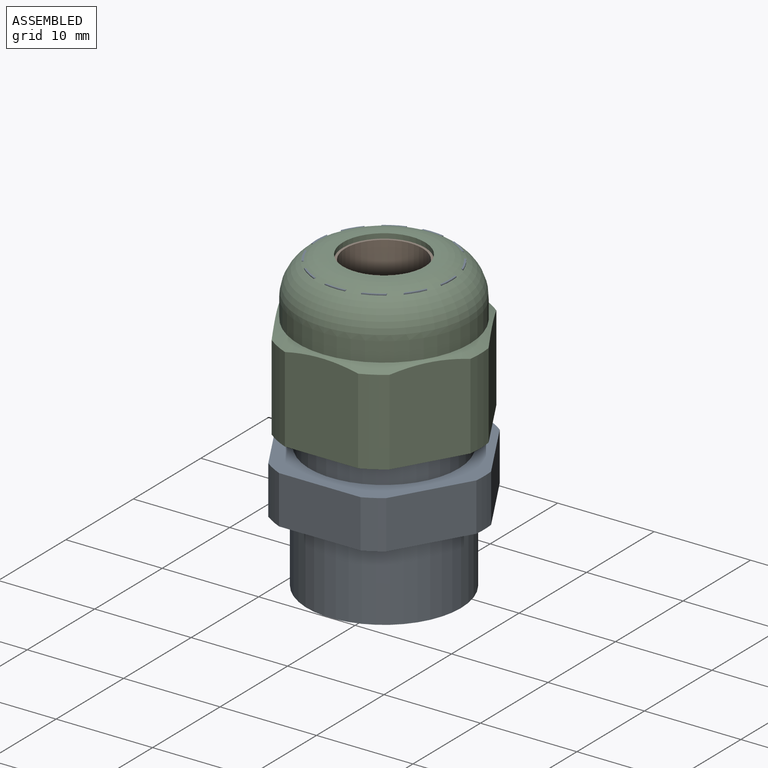
[diagram: assembled view]
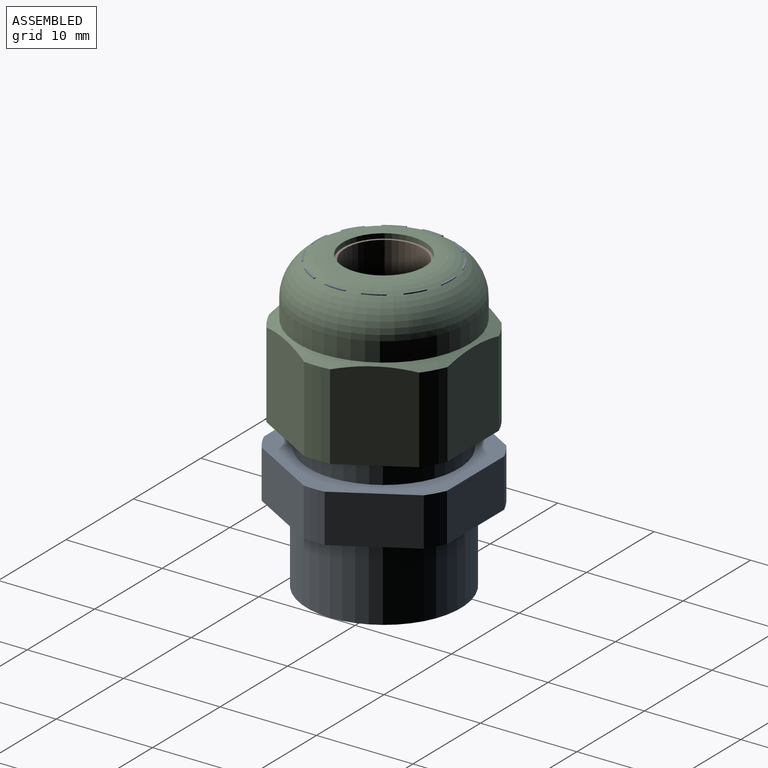
[diagram: assembled view, second angle]
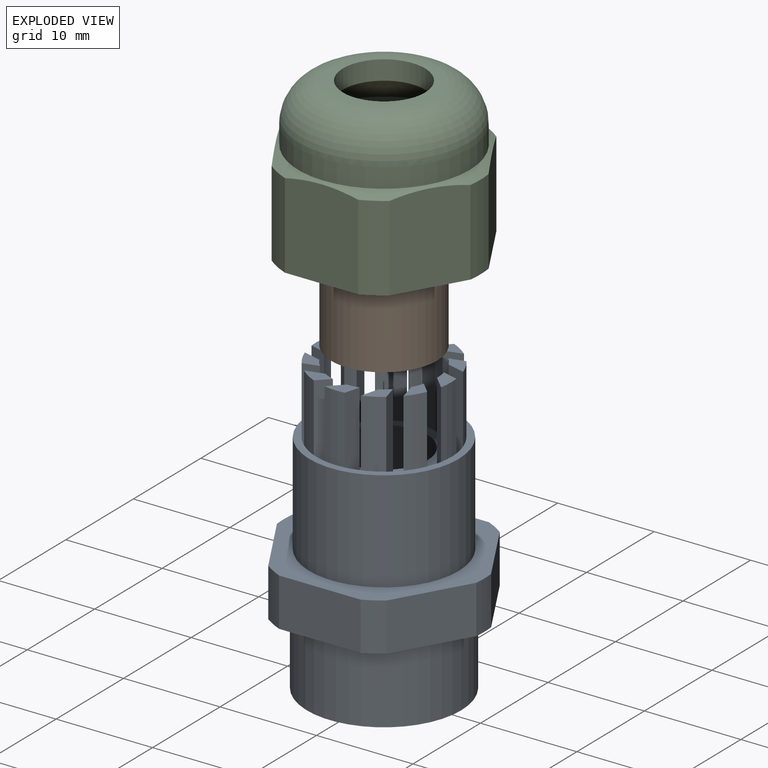
[diagram: exploded view]
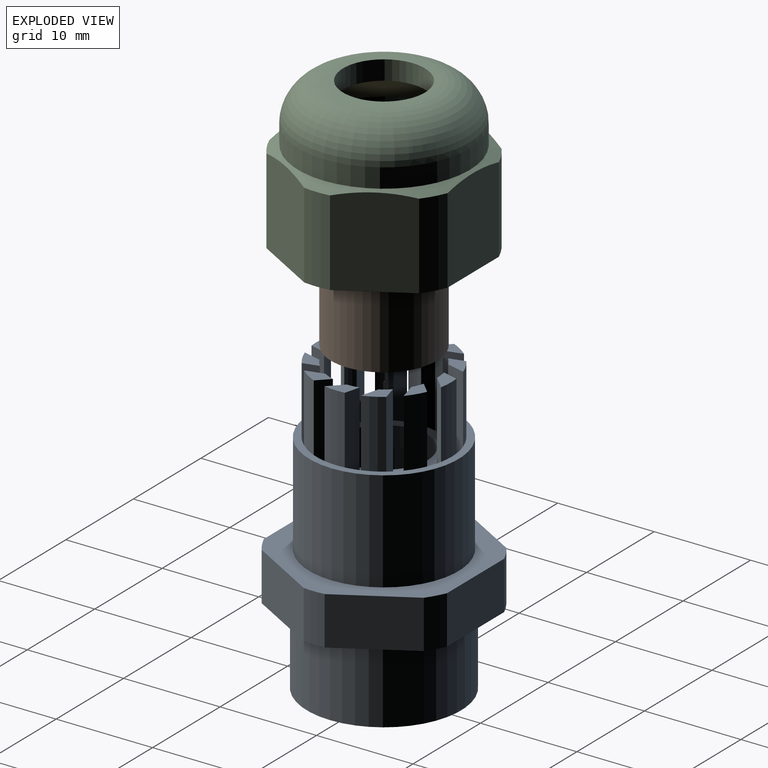
[diagram: exploded view, second angle]
ASSEMBLY  parts=3 mates=2
PART A: 118 faces, bbox 20.8x19x30.5 mm
  f0: cylinder r=7.75mm len=15.5mm, axis (0,0,1), area 511.3mm2, adj f106,f117
  f1: cylinder r=8mm len=16mm, axis (0,0,1), area 402.1mm2, adj f114,f115
  f2: revolved ~20.5x11mm, area 708.4mm2, adj f113,f114
  f3: revolved ~9x9mm, area 56.5mm2, adj f112,f113
  f4: revolved ~2x1.09mm, area 3mm2, adj f5,f6,f8,f117
  f5: plane 9x1.59mm, normal (-0.26,0.97,0), area 14.8mm2, adj f4,f7,f8,f69,f81,f93
  f6: plane 9x1.87mm, normal (0.26,-0.97,0), area 17.4mm2, adj f4,f7,f8,f70,f82,f94
  f7: cylinder r=5.5mm len=1.28mm, axis (0,0,-1), area 1.6mm2, adj f5,f6,f8,f112
  f8: plane 2.87x1.52mm, normal (0,0,1), area 2.3mm2, adj f4,f5,f6,f7
  f9: revolved ~2x1.45mm, area 3mm2, adj f10,f11,f13,f117
  f10: plane 9x1.59mm, normal (0.26,0.97,0), area 14.8mm2, adj f9,f12,f13,f68,f80,f92
  f11: plane 9x1.87mm, normal (-0.26,-0.97,0), area 17.4mm2, adj f9,f12,f13,f69,f81,f93
  f12: cylinder r=5.5mm len=1.52mm, axis (0,0,-1), area 1.6mm2, adj f10,f11,f13,f112
  f13: plane 2.19x1.95mm, normal (0,0,1), area 2.3mm2, adj f9,f10,f11,f12
  f14: revolved ~2x1.41mm, area 3mm2, adj f15,f16,f18,f117
  f15: plane 9x1.17mm, normal (0.71,0.71,0), area 14.8mm2, adj f14,f17,f18,f67,f79,f91
  f16: plane 9x1.37mm, normal (-0.71,-0.71,0), area 17.4mm2, adj f14,f17,f18,f68,f80,f92
  f17: cylinder r=5.5mm len=1.61mm, axis (0,0,-1), area 1.6mm2, adj f15,f16,f18,f112
  f18: plane 2.78x1.61mm, normal (0,0,1), area 2.3mm2, adj f14,f15,f16,f17
  f19: revolved ~2x1.09mm, area 3mm2, adj f20,f21,f23,f117
  f20: plane 9x1.59mm, normal (0.97,0.26,0), area 14.8mm2, adj f19,f22,f23,f66,f78,f90
  f21: plane 9x1.87mm, normal (-0.97,-0.26,0), area 17.4mm2, adj f19,f22,f23,f67,f79,f91
  f22: cylinder r=5.5mm len=1.28mm, axis (0,0,-1), area 1.6mm2, adj f20,f21,f23,f112
  f23: plane 2.87x1.52mm, normal (0,0,1), area 2.3mm2, adj f19,f20,f21,f22
  f24: revolved ~2x1.45mm, area 3mm2, adj f25,f26,f28,f117
  f25: plane 9x1.59mm, normal (0.97,-0.26,0), area 14.8mm2, adj f24,f27,f28,f65,f77,f89
  f26: plane 9x1.87mm, normal (-0.97,0.26,0), area 17.4mm2, adj f24,f27,f28,f66,f78,f90
  f27: cylinder r=5.5mm len=1.52mm, axis (0,0,-1), area 1.6mm2, adj f25,f26,f28,f112
  f28: plane 2.19x1.95mm, normal (0,0,1), area 2.3mm2, adj f24,f25,f26,f27
  f29: revolved ~2x1.41mm, area 3mm2, adj f30,f31,f33,f117
  f30: plane 9x1.17mm, normal (0.71,-0.71,0), area 14.8mm2, adj f29,f32,f33,f64,f76,f88
  f31: plane 9x1.37mm, normal (-0.71,0.71,0), area 17.4mm2, adj f29,f32,f33,f65,f77,f89
  f32: cylinder r=5.5mm len=1.61mm, axis (0,0,-1), area 1.6mm2, adj f30,f31,f33,f112
  f33: plane 2.78x1.61mm, normal (0,0,1), area 2.3mm2, adj f29,f30,f31,f32
  f34: revolved ~2x1.09mm, area 3mm2, adj f35,f36,f38,f117
  f35: plane 9x1.59mm, normal (0.26,-0.97,0), area 14.8mm2, adj f34,f37,f38,f63,f75,f87
  f36: plane 9x1.87mm, normal (-0.26,0.97,0), area 17.4mm2, adj f34,f37,f38,f64,f76,f88
  f37: cylinder r=5.5mm len=1.28mm, axis (0,0,-1), area 1.6mm2, adj f35,f36,f38,f112
  f38: plane 2.87x1.52mm, normal (0,0,1), area 2.3mm2, adj f34,f35,f36,f37
  f39: revolved ~2x1.45mm, area 3mm2, adj f40,f41,f43,f117
  f40: plane 9x1.59mm, normal (-0.26,-0.97,0), area 14.8mm2, adj f39,f42,f43,f62,f74,f86
  f41: plane 9x1.87mm, normal (0.26,0.97,0), area 17.4mm2, adj f39,f42,f43,f63,f75,f87
  f42: cylinder r=5.5mm len=1.52mm, axis (0,0,-1), area 1.6mm2, adj f40,f41,f43,f112
  f43: plane 2.19x1.95mm, normal (0,0,1), area 2.3mm2, adj f39,f40,f41,f42
  f44: revolved ~2x1.41mm, area 3mm2, adj f45,f46,f48,f117
  f45: plane 9x1.17mm, normal (-0.71,-0.71,0), area 14.8mm2, adj f44,f47,f48,f61,f73,f85
  f46: plane 9x1.37mm, normal (0.71,0.71,0), area 17.4mm2, adj f44,f47,f48,f62,f74,f86
  f47: cylinder r=5.5mm len=1.61mm, axis (0,0,-1), area 1.6mm2, adj f45,f46,f48,f112
  f48: plane 2.78x1.61mm, normal (0,0,1), area 2.3mm2, adj f44,f45,f46,f47
  f49: revolved ~2x1.09mm, area 3mm2, adj f50,f51,f53,f117
  f50: plane 9x1.59mm, normal (-0.97,-0.26,0), area 14.8mm2, adj f49,f52,f53,f60,f72,f84
  f51: plane 9x1.87mm, normal (0.97,0.26,0), area 17.4mm2, adj f49,f52,f53,f61,f73,f85
  f52: cylinder r=5.5mm len=1.28mm, axis (0,0,-1), area 1.6mm2, adj f50,f51,f53,f112
  f53: plane 2.87x1.52mm, normal (0,0,1), area 2.3mm2, adj f49,f50,f51,f52
  f54: revolved ~2x1.45mm, area 3mm2, adj f55,f56,f58,f117
  f55: plane 9x1.59mm, normal (-0.97,0.26,0), area 14.8mm2, adj f54,f57,f58,f59,f71,f83
  f56: plane 9x1.87mm, normal (0.97,-0.26,0), area 17.4mm2, adj f54,f57,f58,f60,f72,f84
  f57: cylinder r=5.5mm len=1.52mm, axis (0,0,-1), area 1.6mm2, adj f55,f56,f58,f112
  f58: plane 2.19x1.95mm, normal (0,0,1), area 2.3mm2, adj f54,f55,f56,f57
  f59: revolved ~8x1.23mm, area 9.9mm2, adj f55,f71,f98,f112
  f60: revolved ~8x1mm, area 9.9mm2, adj f50,f56,f72,f112
  f61: revolved ~8x1.14mm, area 9.9mm2, adj f45,f51,f73,f112
  f62: revolved ~8x1.23mm, area 9.9mm2, adj f40,f46,f74,f112
  f63: revolved ~8x1mm, area 9.9mm2, adj f35,f41,f75,f112
  f64: revolved ~8x1.14mm, area 9.9mm2, adj f30,f36,f76,f112
  f65: revolved ~8x1.23mm, area 9.9mm2, adj f25,f31,f77,f112
  f66: revolved ~8x1mm, area 9.9mm2, adj f20,f26,f78,f112
  f67: revolved ~8x1.14mm, area 9.9mm2, adj f15,f21,f79,f112
  f68: revolved ~8x1.23mm, area 9.9mm2, adj f10,f16,f80,f112
  f69: revolved ~8x1mm, area 9.9mm2, adj f5,f11,f81,f112
  f70: revolved ~8x1.14mm, area 9.9mm2, adj f6,f82,f96,f112
  f71: plane 2.6x1.64mm, normal (0,0,1), area 2.6mm2, adj f55,f59,f83,f98
  f72: plane 2.6x1.92mm, normal (0,0,1), area 2.6mm2, adj f50,f56,f60,f84
  f73: plane 3x1.66mm, normal (0,0,1), area 2.6mm2, adj f45,f51,f61,f85
  f74: plane 2.6x1.64mm, normal (0,0,1), area 2.6mm2, adj f40,f46,f62,f86
  f75: plane 2.6x1.92mm, normal (0,0,1), area 2.6mm2, adj f35,f41,f63,f87
  f76: plane 3x1.66mm, normal (0,0,1), area 2.6mm2, adj f30,f36,f64,f88
  f77: plane 2.6x1.64mm, normal (0,0,1), area 2.6mm2, adj f25,f31,f65,f89
  f78: plane 2.6x1.92mm, normal (0,0,1), area 2.6mm2, adj f20,f26,f66,f90
  f79: plane 3x1.66mm, normal (0,0,1), area 2.6mm2, adj f15,f21,f67,f91
  f80: plane 2.6x1.64mm, normal (0,0,1), area 2.6mm2, adj f10,f16,f68,f92
  f81: plane 2.6x1.92mm, normal (0,0,1), area 2.6mm2, adj f5,f11,f69,f93
  f82: plane 3x1.66mm, normal (0,0,1), area 2.6mm2, adj f6,f70,f94,f96
  f83: cylinder r=7mm len=7mm, axis (0,0,1), area 15.3mm2, adj f55,f71,f98,f117
  f84: cylinder r=7mm len=7mm, axis (0,0,1), area 15.3mm2, adj f50,f56,f72,f117
  f85: cylinder r=7mm len=7mm, axis (0,0,1), area 15.3mm2, adj f45,f51,f73,f117
  f86: cylinder r=7mm len=7mm, axis (0,0,1), area 15.3mm2, adj f40,f46,f74,f117
  f87: cylinder r=7mm len=7mm, axis (0,0,1), area 15.3mm2, adj f35,f41,f75,f117
  f88: cylinder r=7mm len=7mm, axis (0,0,1), area 15.3mm2, adj f30,f36,f76,f117
  f89: cylinder r=7mm len=7mm, axis (0,0,1), area 15.3mm2, adj f25,f31,f77,f117
  f90: cylinder r=7mm len=7mm, axis (0,0,1), area 15.3mm2, adj f20,f26,f78,f117
  f91: cylinder r=7mm len=7mm, axis (0,0,1), area 15.3mm2, adj f15,f21,f79,f117
  f92: cylinder r=7mm len=7mm, axis (0,0,1), area 15.3mm2, adj f10,f16,f80,f117
  f93: cylinder r=7mm len=7mm, axis (0,0,1), area 15.3mm2, adj f5,f11,f81,f117
  f94: cylinder r=7mm len=7mm, axis (0,0,1), area 15.3mm2, adj f6,f82,f96,f117
  f95: cylinder r=5.5mm len=1.61mm, axis (0,0,-1), area 1.6mm2, adj f96,f98,f99,f112
  f96: plane 9x1.17mm, normal (-0.71,0.71,0), area 14.8mm2, adj f70,f82,f94,f95,f97,f99
  f97: revolved ~2x1.41mm, area 3mm2, adj f96,f98,f99,f117
  f98: plane 9x1.37mm, normal (0.71,-0.71,0), area 17.4mm2, adj f59,f71,f83,f95,f97,f99
  f99: plane 2.78x1.61mm, normal (0,0,1), area 2.3mm2, adj f95,f96,f97,f98
  f100: plane 8.46x5mm, normal (0,1,0), area 42.3mm2, adj f106,f111,f115,f116
  f101: plane 7.33x5mm, normal (-0.87,0.5,0), area 42.3mm2, adj f106,f110,f111,f115
  f102: plane 7.33x5mm, normal (-0.87,-0.5,0), area 42.3mm2, adj f106,f109,f110,f115
  f103: plane 8.46x5mm, normal (0,-1,0), area 42.3mm2, adj f106,f108,f109,f115
  f104: plane 7.33x5mm, normal (0.87,-0.5,0), area 42.3mm2, adj f106,f107,f108,f115
  f105: plane 7.33x5mm, normal (0.87,0.5,0), area 42.3mm2, adj f106,f107,f115,f116
  f106: plane 20.8x19mm, normal (0,0,1), area 120.4mm2, adj f0,f100,f101,f102,f103,f104,f105,f107
  f107: cylinder r=10.4mm len=5mm, axis (0,0,1), area 10.9mm2, adj f104,f105,f106,f115
  f108: cylinder r=10.4mm len=5mm, axis (0,0,1), area 10.9mm2, adj f103,f104,f106,f115
  f109: cylinder r=10.4mm len=5mm, axis (0,0,1), area 10.9mm2, adj f102,f103,f106,f115
  f110: cylinder r=10.4mm len=5mm, axis (0,0,1), area 10.9mm2, adj f101,f102,f106,f115
  f111: cylinder r=10.4mm len=5mm, axis (0,0,1), area 10.9mm2, adj f100,f101,f106,f115
  f112: plane 11x11mm, normal (0,0,1), area 31.4mm2, adj f3,f7,f12,f17,f22,f27,f32,f37
  f113: plane 11x11mm, normal (0,0,-1), area 31.4mm2, adj f2,f3
  f114: plane 16x16mm, normal (0,0,-1), area 106mm2, adj f1,f2
  f115: plane 20.8x19mm, normal (0,0,-1), area 108mm2, adj f1,f100,f101,f102,f103,f104,f105,f107
  f116: cylinder r=10.4mm len=5mm, axis (0,0,1), area 10.9mm2, adj f100,f105,f106,f115
  f117: plane 15.5x15.5mm, normal (0,0,1), area 34.8mm2, adj f0,f4,f9,f14,f19,f24,f29,f34
PART B: 4 faces, bbox 11x11x8 mm
  f0: cylinder r=5.5mm len=11mm, axis (0,0,1), area 276.5mm2, adj f2,f3
  f1: revolved ~8x8mm, area 201.1mm2, adj f2,f3
  f2: plane 11x11mm, normal (0,0,-1), area 44.8mm2, adj f0,f1
  f3: plane 11x11mm, normal (0,0,1), area 44.8mm2, adj f0,f1
PART C: 21 faces, bbox 20x20x15.5 mm
  f0: cylinder r=8.9mm len=17.8mm, axis (0,0,1), area 111.8mm2, adj f4,f5
  f1: revolved ~15x15mm, area 494.8mm2, adj f2,f19
  f2: revolved ~15x15mm, area 156.6mm2, adj f1,f18
  f3: revolved ~8.5x8.5mm, area 53.4mm2, adj f17,f18
  f4: torus R=4.9mm, axis (0,0,1), area 294mm2, adj f0,f17
  f5: cone r=9.45mm half-angle=60deg, axis (0,0,-1), area 48.9mm2, adj f0,f6,f7,f8,f9,f10,f11,f12
  f6: plane 9.49x7.6mm, normal (0,-1,0), area 69.5mm2, adj f5,f12,f19,f20
  f7: plane 9.49x6.58mm, normal (-0.87,-0.5,0), area 69.5mm2, adj f5,f16,f19,f20
  f8: plane 9.49x6.58mm, normal (-0.87,0.5,0), area 69.5mm2, adj f5,f15,f16,f19
  f9: plane 9.49x7.6mm, normal (0,1,0), area 69.5mm2, adj f5,f14,f15,f19
  f10: plane 9.49x6.58mm, normal (0.87,0.5,0), area 69.5mm2, adj f5,f13,f14,f19
  f11: plane 9.49x6.58mm, normal (0.87,-0.5,0), area 69.5mm2, adj f5,f12,f13,f19
  f12: cylinder r=10mm len=8.87mm, axis (0,0,1), area 23.7mm2, adj f5,f6,f11,f19
  f13: cylinder r=10mm len=8.87mm, axis (0,0,1), area 23.7mm2, adj f5,f10,f11,f19
  f14: cylinder r=10mm len=8.87mm, axis (0,0,1), area 23.7mm2, adj f5,f9,f10,f19
  f15: cylinder r=10mm len=8.87mm, axis (0,0,1), area 23.7mm2, adj f5,f8,f9,f19
  f16: cylinder r=10mm len=8.87mm, axis (0,0,1), area 23.7mm2, adj f5,f7,f8,f19
  f17: plane 9.8x9.8mm, normal (0,0,1), area 18.7mm2, adj f3,f4
  f18: plane 9.5x9.5mm, normal (0,0,-1), area 14.1mm2, adj f2,f3
  f19: plane 20x18.5mm, normal (0,0,-1), area 114.5mm2, adj f1,f6,f7,f8,f9,f10,f11,f12
  f20: cylinder r=10mm len=8.87mm, axis (0,0,1), area 23.7mm2, adj f5,f6,f7,f19
PLACE A t=(0,0,0.05)mm
PLACE B t=(0,0,0.05)mm
PLACE C t=(0,0,-1.73)mm
MATE fastened B.f0 <-> A.f0  axis (0,0,-1) through (0,0,22.55)mm
MATE fastened B.f0 <-> C.f0  axis (0,0,1) through (0,0,30.55)mm
